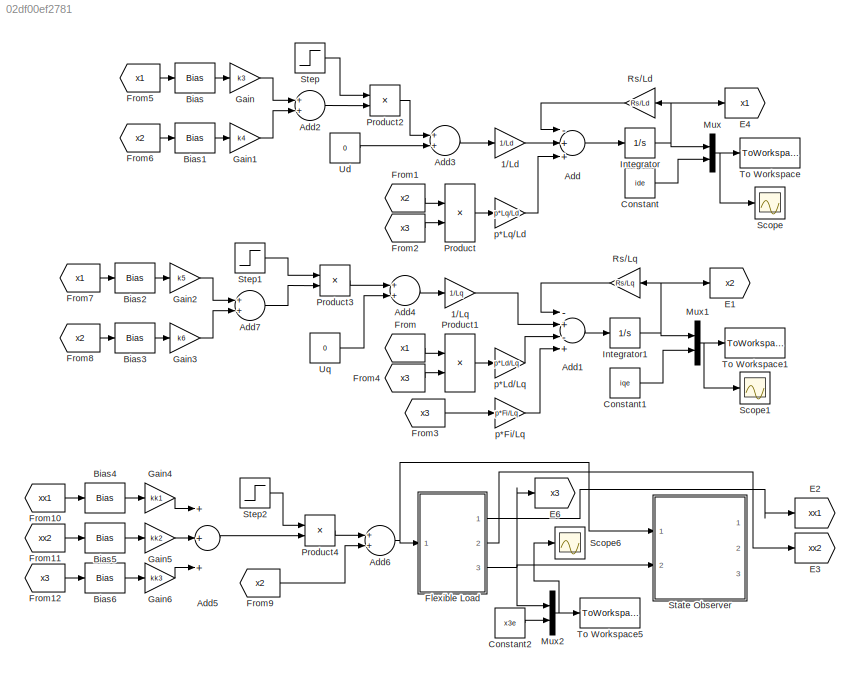
MODEL slx_02df00ef2781
KIND model
CONFIG AbsTol = auto
CONFIG EnableMultiTasking = off
CONFIG FixedStep = 5e-5
CONFIG InitFcn = Rs = 0.011\nLd = 0.018\nLq = 0.018\nFi = 0.055\np = 4\nJ = 0.102\nb = 0.18\n\nA1 = 1\nB1 = -5000\nB2 = -0.0200 \nB3 = 10\nC1 = 500\nC2 = -2.499999800000000e+04\nC3 = -90.999999999999990 \nC4 = 110\n\ntC = 20\nkk1 = -1011\nkk2 = -181.5\nkk3 = -10\nk3 = -1.586440829524976\nk4 = -0.541242258944882\nk5 = -0.541242258944882\nk6 = -0.328094464592671\n\nx1e = 0.001479483606571\nx2e = 0\nx3e = 0.739741803285525\nide = 2.9305555555555...<+101ch>
CONFIG MaxStep = 1e-4
CONFIG MinStep = 1e-6
CONFIG RelTol = 1e-10
CONFIG SampleTimeConstraint = Unconstrained
CONFIG Solver = ode45
CONFIG SolverName = ode45
CONFIG StartTime = 0.0
CONFIG StopTime = 50
BLOCK [Gain] 1//Ld
  Gain = 1/Ld
  OutDataTypeStr = Inherit: Inherit via internal rule
  ParamDataTypeStr = Inherit: Inherit via internal rule
  SaturateOnIntegerOverflow = off
BLOCK [Gain] 1//Lq
  Gain = 1/Lq
  OutDataTypeStr = Inherit: Inherit via internal rule
  ParamDataTypeStr = Inherit: Inherit via internal rule
  SaturateOnIntegerOverflow = off
BLOCK [Sum] Add
  InputSameDT = off
  Inputs = -++
  OutDataTypeStr = Inherit: Inherit via internal rule
  Ports = [3, 1]
  SaturateOnIntegerOverflow = off
BLOCK [Sum] Add1
  InputSameDT = off
  Inputs = -+-+
  OutDataTypeStr = Inherit: Inherit via internal rule
  Ports = [4, 1]
  SaturateOnIntegerOverflow = off
BLOCK [Sum] Add2
  InputSameDT = off
  OutDataTypeStr = Inherit: Inherit via internal rule
  Ports = [2, 1]
  SaturateOnIntegerOverflow = off
BLOCK [Sum] Add3
  InputSameDT = off
  OutDataTypeStr = Inherit: Inherit via internal rule
  Ports = [2, 1]
  SaturateOnIntegerOverflow = off
BLOCK [Sum] Add4
  InputSameDT = off
  OutDataTypeStr = Inherit: Inherit via internal rule
  Ports = [2, 1]
  SaturateOnIntegerOverflow = off
BLOCK [Sum] Add5
  InputSameDT = off
  Inputs = +++
  OutDataTypeStr = Inherit: Inherit via internal rule
  Ports = [3, 1]
  SaturateOnIntegerOverflow = off
BLOCK [Sum] Add6
  InputSameDT = off
  OutDataTypeStr = Inherit: Inherit via internal rule
  Ports = [2, 1]
  SaturateOnIntegerOverflow = off
BLOCK [Sum] Add7
  InputSameDT = off
  OutDataTypeStr = Inherit: Inherit via internal rule
  Ports = [2, 1]
  SaturateOnIntegerOverflow = off
BLOCK [Bias] Bias
  Bias = -ide
  SaturateOnIntegerOverflow = off
BLOCK [Bias] Bias1
  Bias = -iqe
  SaturateOnIntegerOverflow = off
BLOCK [Bias] Bias2
  Bias = -ide
  SaturateOnIntegerOverflow = off
BLOCK [Bias] Bias3
  Bias = -iqe
  SaturateOnIntegerOverflow = off
BLOCK [Bias] Bias4
  Bias = -x1e
  SaturateOnIntegerOverflow = off
BLOCK [Bias] Bias5
  Bias = -x2e
  SaturateOnIntegerOverflow = off
BLOCK [Bias] Bias6
  Bias = -x3e
  SaturateOnIntegerOverflow = off
BLOCK [Constant] Constant
  Value = ide
BLOCK [Constant] Constant1
  Value = iqe
BLOCK [Constant] Constant2
  Value = x3e
BLOCK [Goto] E1
  GotoTag = x2
BLOCK [Goto] E2
  GotoTag = xx1
BLOCK [Goto] E3
  GotoTag = xx2
BLOCK [Goto] E4
  GotoTag = x1
BLOCK [Goto] E6
  GotoTag = x3
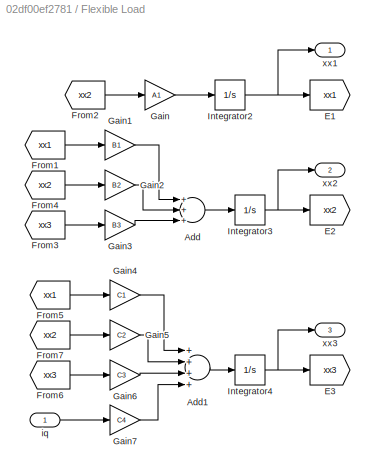
BLOCK [SubSystem] Flexible Load
  Ports = [1, 3]
  RequestExecContextInheritance = off
BLOCK [Sum] Flexible Load/Add
  InputSameDT = off
  Inputs = +++
  OutDataTypeStr = Inherit: Inherit via internal rule
  Ports = [3, 1]
  SaturateOnIntegerOverflow = off
BLOCK [Sum] Flexible Load/Add1
  InputSameDT = off
  Inputs = ++++
  OutDataTypeStr = Inherit: Inherit via internal rule
  Ports = [4, 1]
  SaturateOnIntegerOverflow = off
BLOCK [Goto] Flexible Load/E1
  GotoTag = xx1
BLOCK [Goto] Flexible Load/E2
  GotoTag = xx2
BLOCK [Goto] Flexible Load/E3
  GotoTag = xx3
BLOCK [From] Flexible Load/From1
  GotoTag = xx1
BLOCK [From] Flexible Load/From2
  GotoTag = xx2
BLOCK [From] Flexible Load/From3
  GotoTag = xx3
BLOCK [From] Flexible Load/From4
  GotoTag = xx2
BLOCK [From] Flexible Load/From5
  GotoTag = xx1
BLOCK [From] Flexible Load/From6
  GotoTag = xx3
BLOCK [From] Flexible Load/From7
  GotoTag = xx2
BLOCK [Gain] Flexible Load/Gain
  Gain = A1
  OutDataTypeStr = Inherit: Inherit via internal rule
  ParamDataTypeStr = Inherit: Inherit via internal rule
  SaturateOnIntegerOverflow = off
BLOCK [Gain] Flexible Load/Gain1
  Gain = B1
  OutDataTypeStr = Inherit: Inherit via internal rule
  ParamDataTypeStr = Inherit: Inherit via internal rule
  SaturateOnIntegerOverflow = off
BLOCK [Gain] Flexible Load/Gain2
  Gain = B2
  OutDataTypeStr = Inherit: Inherit via internal rule
  ParamDataTypeStr = Inherit: Inherit via internal rule
  SaturateOnIntegerOverflow = off
BLOCK [Gain] Flexible Load/Gain3
  Gain = B3
  OutDataTypeStr = Inherit: Inherit via internal rule
  ParamDataTypeStr = Inherit: Inherit via internal rule
  SaturateOnIntegerOverflow = off
BLOCK [Gain] Flexible Load/Gain4
  Gain = C1
  OutDataTypeStr = Inherit: Inherit via internal rule
  ParamDataTypeStr = Inherit: Inherit via internal rule
  SaturateOnIntegerOverflow = off
BLOCK [Gain] Flexible Load/Gain5
  Gain = C2
  OutDataTypeStr = Inherit: Inherit via internal rule
  ParamDataTypeStr = Inherit: Inherit via internal rule
  SaturateOnIntegerOverflow = off
BLOCK [Gain] Flexible Load/Gain6
  Gain = C3
  OutDataTypeStr = Inherit: Inherit via internal rule
  ParamDataTypeStr = Inherit: Inherit via internal rule
  SaturateOnIntegerOverflow = off
BLOCK [Gain] Flexible Load/Gain7
  Gain = C4
  OutDataTypeStr = Inherit: Inherit via internal rule
  ParamDataTypeStr = Inherit: Inherit via internal rule
  SaturateOnIntegerOverflow = off
BLOCK [Integrator] Flexible Load/Integrator2
  Ports = [1, 1]
BLOCK [Integrator] Flexible Load/Integrator3
  Ports = [1, 1]
BLOCK [Integrator] Flexible Load/Integrator4
  Ports = [1, 1]
BLOCK [Inport] Flexible Load/iq
  IconDisplay = Port number
BLOCK [Outport] Flexible Load/xx1
  IconDisplay = Port number
BLOCK [Outport] Flexible Load/xx2
  IconDisplay = Port number
  Port = 2
BLOCK [Outport] Flexible Load/xx3
  IconDisplay = Port number
  Port = 3
BLOCK [From] From
  GotoTag = x1
BLOCK [From] From1
  GotoTag = x2
BLOCK [From] From10
  GotoTag = xx1
BLOCK [From] From11
  GotoTag = xx2
BLOCK [From] From12
  GotoTag = x3
BLOCK [From] From2
  GotoTag = x3
BLOCK [From] From3
  GotoTag = x3
BLOCK [From] From4
  GotoTag = x3
BLOCK [From] From5
  GotoTag = x1
BLOCK [From] From6
  GotoTag = x2
BLOCK [From] From7
  GotoTag = x1
BLOCK [From] From8
  GotoTag = x2
BLOCK [From] From9
  GotoTag = x2
BLOCK [Gain] Gain
  Gain = k3
  OutDataTypeStr = Inherit: Inherit via internal rule
  ParamDataTypeStr = Inherit: Inherit via internal rule
  SaturateOnIntegerOverflow = off
BLOCK [Gain] Gain1
  Gain = k4
  OutDataTypeStr = Inherit: Inherit via internal rule
  ParamDataTypeStr = Inherit: Inherit via internal rule
  SaturateOnIntegerOverflow = off
BLOCK [Gain] Gain2
  Gain = k5
  OutDataTypeStr = Inherit: Inherit via internal rule
  ParamDataTypeStr = Inherit: Inherit via internal rule
  SaturateOnIntegerOverflow = off
BLOCK [Gain] Gain3
  Gain = k6
  OutDataTypeStr = Inherit: Inherit via internal rule
  ParamDataTypeStr = Inherit: Inherit via internal rule
  SaturateOnIntegerOverflow = off
BLOCK [Gain] Gain4
  Gain = kk1
  OutDataTypeStr = Inherit: Inherit via internal rule
  ParamDataTypeStr = Inherit: Inherit via internal rule
  SaturateOnIntegerOverflow = off
BLOCK [Gain] Gain5
  Gain = kk2
  OutDataTypeStr = Inherit: Inherit via internal rule
  ParamDataTypeStr = Inherit: Inherit via internal rule
  SaturateOnIntegerOverflow = off
BLOCK [Gain] Gain6
  Gain = kk3
  OutDataTypeStr = Inherit: Inherit via internal rule
  ParamDataTypeStr = Inherit: Inherit via internal rule
  SaturateOnIntegerOverflow = off
BLOCK [Integrator] Integrator
  InitialCondition = 0.15
  Ports = [1, 1]
BLOCK [Integrator] Integrator1
  InitialCondition = 0.14
  Ports = [1, 1]
BLOCK [Mux] Mux
  DisplayOption = bar
  Inputs = 2
  Ports = [2, 1]
BLOCK [Mux] Mux1
  DisplayOption = bar
  Inputs = 2
  Ports = [2, 1]
BLOCK [Mux] Mux2
  DisplayOption = bar
  Inputs = 2
  Ports = [2, 1]
BLOCK [Product] Product
  InputSameDT = off
  OutDataTypeStr = Inherit: Inherit via internal rule
  Ports = [2, 1]
  RndMeth = Floor
  SaturateOnIntegerOverflow = off
BLOCK [Product] Product1
  InputSameDT = off
  OutDataTypeStr = Inherit: Inherit via internal rule
  Ports = [2, 1]
  RndMeth = Floor
  SaturateOnIntegerOverflow = off
BLOCK [Product] Product2
  InputSameDT = off
  OutDataTypeStr = Inherit: Inherit via internal rule
  Ports = [2, 1]
  RndMeth = Floor
  SaturateOnIntegerOverflow = off
BLOCK [Product] Product3
  InputSameDT = off
  OutDataTypeStr = Inherit: Inherit via internal rule
  Ports = [2, 1]
  RndMeth = Floor
  SaturateOnIntegerOverflow = off
BLOCK [Product] Product4
  InputSameDT = off
  OutDataTypeStr = Inherit: Inherit via internal rule
  Ports = [2, 1]
  RndMeth = Floor
  SaturateOnIntegerOverflow = off
BLOCK [Gain] Rs//Ld
  Gain = Rs/Ld
  OutDataTypeStr = Inherit: Inherit via internal rule
  ParamDataTypeStr = Inherit: Inherit via internal rule
  SaturateOnIntegerOverflow = off
BLOCK [Gain] Rs//Lq
  Gain = Rs/Lq
  OutDataTypeStr = Inherit: Inherit via internal rule
  ParamDataTypeStr = Inherit: Inherit via internal rule
  SaturateOnIntegerOverflow = off
BLOCK [Scope] Scope
  Floating = off
  NumInputPorts = 1
  Ports = [1]
  ScopeSpecificationString = Simulink.scopes.TimeScopeBlockCfg('CurrentConfiguration', extmgr.ConfigurationSet(extmgr.Configuration('Core','General UI',true),extmgr.Configuration('Core','Source UI',true),extmgr.Configuration('Sources','WiredSimulink',true),extmgr.Configuration('Visuals','Time Domain',true,'SerializedDisplays',{struct('MinYLimReal','-0.49448','MaxYLimReal','5.7945','YLabelReal','','MinYLimMag','0.00000','MaxYL...<+1381ch>
BLOCK [Scope] Scope1
  Floating = off
  NumInputPorts = 1
  Ports = [1]
  ScopeSpecificationString = Simulink.scopes.TimeScopeBlockCfg('CurrentConfiguration', extmgr.ConfigurationSet(extmgr.Configuration('Core','General UI',true),extmgr.Configuration('Core','Source UI',true),extmgr.Configuration('Sources','WiredSimulink',true,'DataLoggingVariableName','ScopeData1'),extmgr.Configuration('Visuals','Time Domain',true,'SerializedDisplays',{struct('MinYLimReal','-2.11325','MaxYLimReal','3.27008','YLab...<+1426ch>
BLOCK [Scope] Scope6
  Floating = off
  NumInputPorts = 1
  Ports = [1]
  ScopeSpecificationString = Simulink.scopes.TimeScopeBlockCfg('CurrentConfiguration', extmgr.ConfigurationSet(extmgr.Configuration('Core','General UI',true),extmgr.Configuration('Core','Source UI',true),extmgr.Configuration('Sources','WiredSimulink',true,'DataLoggingVariableName','ScopeData2'),extmgr.Configuration('Visuals','Time Domain',true,'SerializedDisplays',{struct('MinYLimReal','-1.6375','MaxYLimReal','2.15026','YLabe...<+1491ch>
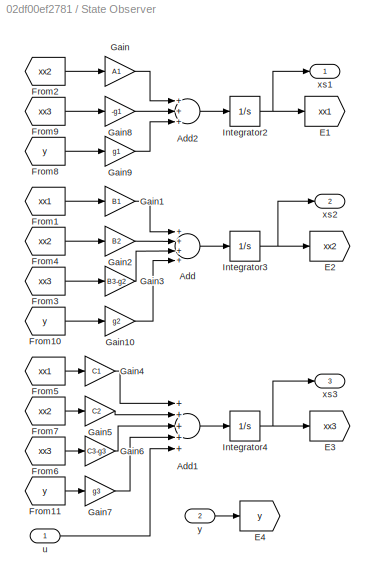
BLOCK [SubSystem] State Observer
  Ports = [2, 3]
  RequestExecContextInheritance = off
BLOCK [Sum] State Observer/Add
  InputSameDT = off
  Inputs = ++++
  OutDataTypeStr = Inherit: Inherit via internal rule
  Ports = [4, 1]
  SaturateOnIntegerOverflow = off
BLOCK [Sum] State Observer/Add1
  InputSameDT = off
  Inputs = +++++
  OutDataTypeStr = Inherit: Inherit via internal rule
  Ports = [5, 1]
  SaturateOnIntegerOverflow = off
BLOCK [Sum] State Observer/Add2
  InputSameDT = off
  Inputs = +++
  OutDataTypeStr = Inherit: Inherit via internal rule
  Ports = [3, 1]
  SaturateOnIntegerOverflow = off
BLOCK [Goto] State Observer/E1
  GotoTag = xx1
BLOCK [Goto] State Observer/E2
  GotoTag = xx2
BLOCK [Goto] State Observer/E3
  GotoTag = xx3
BLOCK [Goto] State Observer/E4
  GotoTag = y
BLOCK [From] State Observer/From1
  GotoTag = xx1
BLOCK [From] State Observer/From10
  GotoTag = y
BLOCK [From] State Observer/From11
  GotoTag = y
BLOCK [From] State Observer/From2
  GotoTag = xx2
BLOCK [From] State Observer/From3
  GotoTag = xx3
BLOCK [From] State Observer/From4
  GotoTag = xx2
BLOCK [From] State Observer/From5
  GotoTag = xx1
BLOCK [From] State Observer/From6
  GotoTag = xx3
BLOCK [From] State Observer/From7
  GotoTag = xx2
BLOCK [From] State Observer/From8
  GotoTag = y
BLOCK [From] State Observer/From9
  GotoTag = xx3
BLOCK [Gain] State Observer/Gain
  Gain = A1
  OutDataTypeStr = Inherit: Inherit via internal rule
  ParamDataTypeStr = Inherit: Inherit via internal rule
  SaturateOnIntegerOverflow = off
BLOCK [Gain] State Observer/Gain1
  Gain = B1
  OutDataTypeStr = Inherit: Inherit via internal rule
  ParamDataTypeStr = Inherit: Inherit via internal rule
  SaturateOnIntegerOverflow = off
BLOCK [Gain] State Observer/Gain10
  Gain = g2
  OutDataTypeStr = Inherit: Inherit via internal rule
  ParamDataTypeStr = Inherit: Inherit via internal rule
  SaturateOnIntegerOverflow = off
BLOCK [Gain] State Observer/Gain2
  Gain = B2
  OutDataTypeStr = Inherit: Inherit via internal rule
  ParamDataTypeStr = Inherit: Inherit via internal rule
  SaturateOnIntegerOverflow = off
BLOCK [Gain] State Observer/Gain3
  Gain = B3-g2
  OutDataTypeStr = Inherit: Inherit via internal rule
  ParamDataTypeStr = Inherit: Inherit via internal rule
  SaturateOnIntegerOverflow = off
BLOCK [Gain] State Observer/Gain4
  Gain = C1
  OutDataTypeStr = Inherit: Inherit via internal rule
  ParamDataTypeStr = Inherit: Inherit via internal rule
  SaturateOnIntegerOverflow = off
BLOCK [Gain] State Observer/Gain5
  Gain = C2
  OutDataTypeStr = Inherit: Inherit via internal rule
  ParamDataTypeStr = Inherit: Inherit via internal rule
  SaturateOnIntegerOverflow = off
BLOCK [Gain] State Observer/Gain6
  Gain = C3-g3
  OutDataTypeStr = Inherit: Inherit via internal rule
  ParamDataTypeStr = Inherit: Inherit via internal rule
  SaturateOnIntegerOverflow = off
BLOCK [Gain] State Observer/Gain7
  Gain = g3
  OutDataTypeStr = Inherit: Inherit via internal rule
  ParamDataTypeStr = Inherit: Inherit via internal rule
  SaturateOnIntegerOverflow = off
BLOCK [Gain] State Observer/Gain8
  Gain = -g1
  OutDataTypeStr = Inherit: Inherit via internal rule
  ParamDataTypeStr = Inherit: Inherit via internal rule
  SaturateOnIntegerOverflow = off
BLOCK [Gain] State Observer/Gain9
  Gain = g1
  OutDataTypeStr = Inherit: Inherit via internal rule
  ParamDataTypeStr = Inherit: Inherit via internal rule
  SaturateOnIntegerOverflow = off
BLOCK [Integrator] State Observer/Integrator2
  Ports = [1, 1]
BLOCK [Integrator] State Observer/Integrator3
  Ports = [1, 1]
BLOCK [Integrator] State Observer/Integrator4
  Ports = [1, 1]
BLOCK [Inport] State Observer/u
  IconDisplay = Port number
BLOCK [Outport] State Observer/xs1
  IconDisplay = Port number
BLOCK [Outport] State Observer/xs2
  IconDisplay = Port number
  Port = 2
BLOCK [Outport] State Observer/xs3
  IconDisplay = Port number
  Port = 3
BLOCK [Inport] State Observer/y
  IconDisplay = Port number
  Port = 2
BLOCK [Step] Step
  SampleTime = 0
  Time = tC
BLOCK [Step] Step1
  SampleTime = 0
  Time = tC
BLOCK [Step] Step2
  SampleTime = 0
  Time = tC
BLOCK [ToWorkspace] To Workspace
  FixptAsFi = on
  MaxDataPoints = inf
  Ports = [1]
  SampleTime = -1
  Save2DSignal = 2-D array (concatenate along first dimension)
  VariableName = x1
BLOCK [ToWorkspace] To Workspace1
  FixptAsFi = on
  MaxDataPoints = inf
  Ports = [1]
  SampleTime = -1
  Save2DSignal = 2-D array (concatenate along first dimension)
  VariableName = x2
BLOCK [ToWorkspace] To Workspace5
  FixptAsFi = on
  MaxDataPoints = inf
  Ports = [1]
  SampleTime = -1
  Save2DSignal = 2-D array (concatenate along first dimension)
  VariableName = x3
BLOCK [Constant] Ud
  Value = 0
BLOCK [Constant] Uq
  Value = 0
BLOCK [Gain] p*Fi//Lq
  Gain = p*Fi/Lq
  OutDataTypeStr = Inherit: Inherit via internal rule
  ParamDataTypeStr = Inherit: Inherit via internal rule
  SaturateOnIntegerOverflow = off
BLOCK [Gain] p*Ld//Lq
  Gain = p*Ld/Lq
  OutDataTypeStr = Inherit: Inherit via internal rule
  ParamDataTypeStr = Inherit: Inherit via internal rule
  SaturateOnIntegerOverflow = off
BLOCK [Gain] p*Lq//Ld
  Gain = p*Lq/Ld
  OutDataTypeStr = Inherit: Inherit via internal rule
  ParamDataTypeStr = Inherit: Inherit via internal rule
  SaturateOnIntegerOverflow = off
LINE 1//Ld:1 -> Add:2
LINE 1//Lq:1 -> Add1:2
LINE Add1:1 -> Integrator1:1
LINE Add2:1 -> Product2:2
LINE Add3:1 -> 1//Ld:1
LINE Add4:1 -> 1//Lq:1
LINE Add5:1 -> Product4:2
NET Add6:1 -> Flexible Load:1, State Observer:1
LINE Add7:1 -> Product3:2
LINE Add:1 -> Integrator:1
LINE Bias1:1 -> Gain1:1
LINE Bias2:1 -> Gain2:1
LINE Bias3:1 -> Gain3:1
LINE Bias4:1 -> Gain4:1
LINE Bias5:1 -> Gain5:1
LINE Bias6:1 -> Gain6:1
LINE Bias:1 -> Gain:1
LINE Constant1:1 -> Mux1:2
LINE Constant2:1 -> Mux2:2
LINE Constant:1 -> Mux:2
LINE Flexible Load/Add1:1 -> Flexible Load/Integrator4:1
LINE Flexible Load/Add:1 -> Flexible Load/Integrator3:1
LINE Flexible Load/From1:1 -> Flexible Load/Gain1:1
LINE Flexible Load/From2:1 -> Flexible Load/Gain:1
LINE Flexible Load/From3:1 -> Flexible Load/Gain3:1
LINE Flexible Load/From4:1 -> Flexible Load/Gain2:1
LINE Flexible Load/From5:1 -> Flexible Load/Gain4:1
LINE Flexible Load/From6:1 -> Flexible Load/Gain6:1
LINE Flexible Load/From7:1 -> Flexible Load/Gain5:1
LINE Flexible Load/Gain1:1 -> Flexible Load/Add:1
LINE Flexible Load/Gain2:1 -> Flexible Load/Add:2
LINE Flexible Load/Gain3:1 -> Flexible Load/Add:3
LINE Flexible Load/Gain4:1 -> Flexible Load/Add1:1
LINE Flexible Load/Gain5:1 -> Flexible Load/Add1:2
LINE Flexible Load/Gain6:1 -> Flexible Load/Add1:3
LINE Flexible Load/Gain7:1 -> Flexible Load/Add1:4
LINE Flexible Load/Gain:1 -> Flexible Load/Integrator2:1
NET Flexible Load/Integrator2:1 -> Flexible Load/E1:1, Flexible Load/xx1:1
NET Flexible Load/Integrator3:1 -> Flexible Load/E2:1, Flexible Load/xx2:1
NET Flexible Load/Integrator4:1 -> Flexible Load/E3:1, Flexible Load/xx3:1
LINE Flexible Load/iq:1 -> Flexible Load/Gain7:1
LINE Flexible Load:1 -> E2:1
LINE Flexible Load:2 -> E3:1
NET Flexible Load:3 -> E6:1, Mux2:1, State Observer:2
LINE From10:1 -> Bias4:1
LINE From11:1 -> Bias5:1
LINE From12:1 -> Bias6:1
LINE From1:1 -> Product:1
LINE From2:1 -> Product:2
LINE From3:1 -> p*Fi//Lq:1
LINE From4:1 -> Product1:2
LINE From5:1 -> Bias:1
LINE From6:1 -> Bias1:1
LINE From7:1 -> Bias2:1
LINE From8:1 -> Bias3:1
LINE From9:1 -> Add6:2
LINE From:1 -> Product1:1
LINE Gain1:1 -> Add2:2
LINE Gain2:1 -> Add7:1
LINE Gain3:1 -> Add7:2
LINE Gain4:1 -> Add5:1
LINE Gain5:1 -> Add5:2
LINE Gain6:1 -> Add5:3
LINE Gain:1 -> Add2:1
NET Integrator1:1 -> E1:1, Mux1:1, Rs//Lq:1
NET Integrator:1 -> E4:1, Mux:1, Rs//Ld:1
NET Mux1:1 -> Scope1:1, To Workspace1:1
NET Mux2:1 -> Scope6:1, To Workspace5:1
NET Mux:1 -> Scope:1, To Workspace:1
LINE Product1:1 -> p*Ld//Lq:1
LINE Product2:1 -> Add3:1
LINE Product3:1 -> Add4:1
LINE Product4:1 -> Add6:1
LINE Product:1 -> p*Lq//Ld:1
LINE Rs//Ld:1 -> Add:1
LINE Rs//Lq:1 -> Add1:1
LINE State Observer/Add1:1 -> State Observer/Integrator4:1
LINE State Observer/Add2:1 -> State Observer/Integrator2:1
LINE State Observer/Add:1 -> State Observer/Integrator3:1
LINE State Observer/From10:1 -> State Observer/Gain10:1
LINE State Observer/From11:1 -> State Observer/Gain7:1
LINE State Observer/From1:1 -> State Observer/Gain1:1
LINE State Observer/From2:1 -> State Observer/Gain:1
LINE State Observer/From3:1 -> State Observer/Gain3:1
LINE State Observer/From4:1 -> State Observer/Gain2:1
LINE State Observer/From5:1 -> State Observer/Gain4:1
LINE State Observer/From6:1 -> State Observer/Gain6:1
LINE State Observer/From7:1 -> State Observer/Gain5:1
LINE State Observer/From8:1 -> State Observer/Gain9:1
LINE State Observer/From9:1 -> State Observer/Gain8:1
LINE State Observer/Gain10:1 -> State Observer/Add:4
LINE State Observer/Gain1:1 -> State Observer/Add:1
LINE State Observer/Gain2:1 -> State Observer/Add:2
LINE State Observer/Gain3:1 -> State Observer/Add:3
LINE State Observer/Gain4:1 -> State Observer/Add1:1
LINE State Observer/Gain5:1 -> State Observer/Add1:2
LINE State Observer/Gain6:1 -> State Observer/Add1:3
LINE State Observer/Gain7:1 -> State Observer/Add1:4
LINE State Observer/Gain8:1 -> State Observer/Add2:2
LINE State Observer/Gain9:1 -> State Observer/Add2:3
LINE State Observer/Gain:1 -> State Observer/Add2:1
NET State Observer/Integrator2:1 -> State Observer/E1:1, State Observer/xs1:1
NET State Observer/Integrator3:1 -> State Observer/E2:1, State Observer/xs2:1
NET State Observer/Integrator4:1 -> State Observer/E3:1, State Observer/xs3:1
LINE State Observer/u:1 -> State Observer/Add1:5
LINE State Observer/y:1 -> State Observer/E4:1
LINE Step1:1 -> Product3:1
LINE Step2:1 -> Product4:1
LINE Step:1 -> Product2:1
LINE Ud:1 -> Add3:2
LINE Uq:1 -> Add4:2
LINE p*Fi//Lq:1 -> Add1:4
LINE p*Ld//Lq:1 -> Add1:3
LINE p*Lq//Ld:1 -> Add:3
note: NET lines group one-source signal fan-out (src -> all destinations, sorted); 1:1 wires keep LINE
